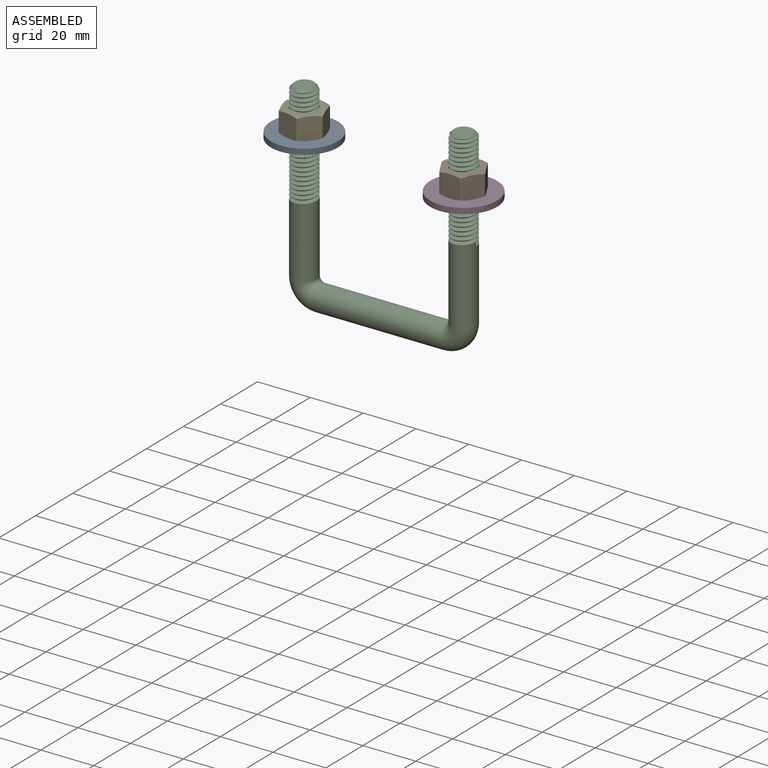
[diagram: assembled view]
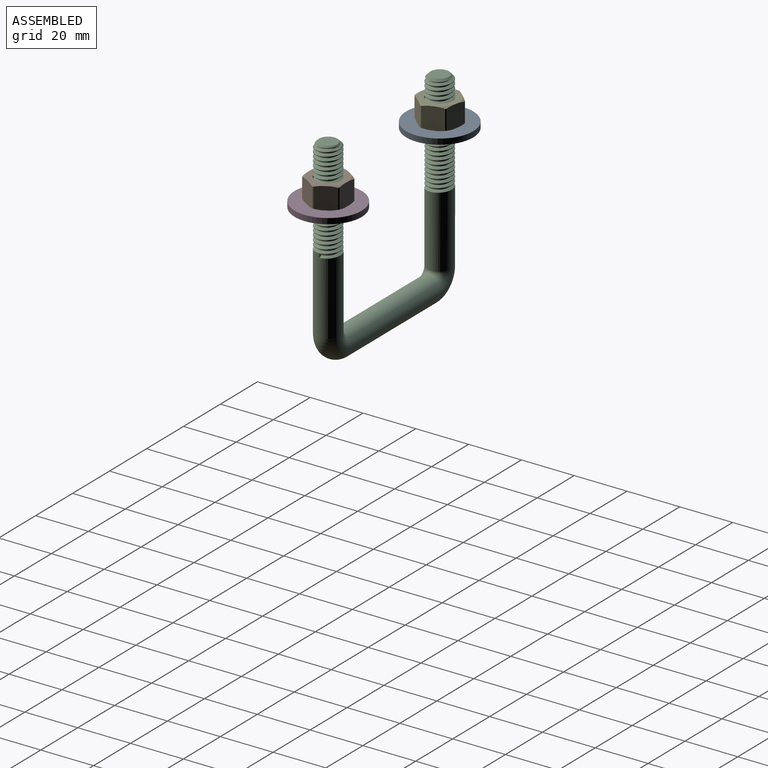
[diagram: assembled view, second angle]
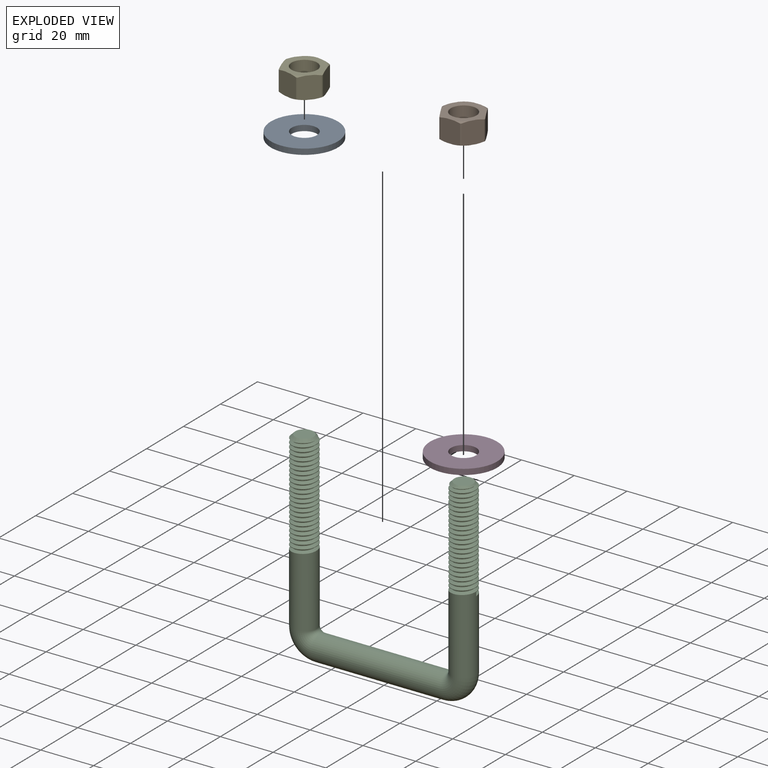
[diagram: exploded view]
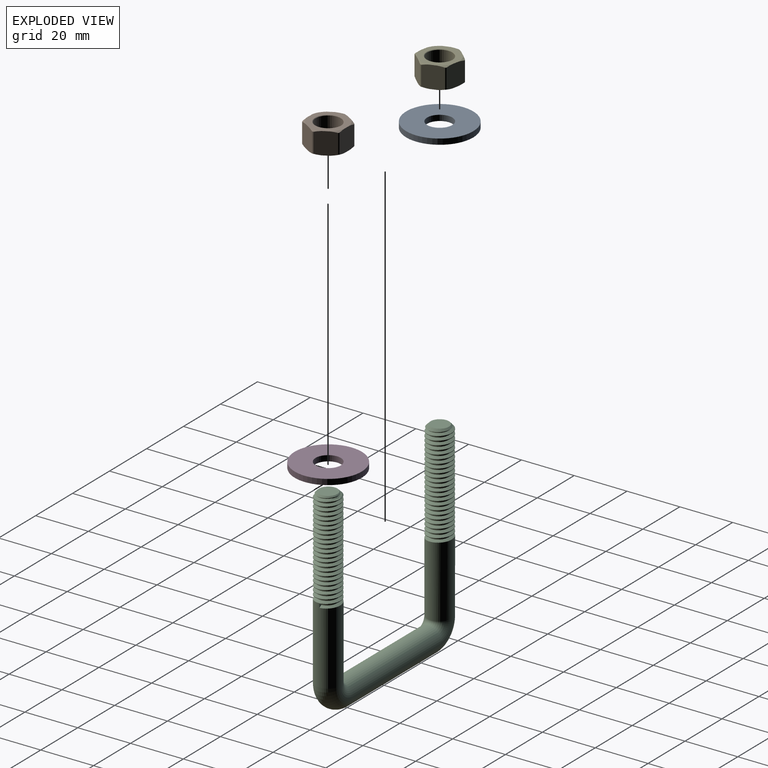
[diagram: exploded view, second angle]
ASSEMBLY  parts=5 mates=4
PART A: 4 faces, bbox 25.4x25.4x2.1 mm
  f0: plane 25.4x25.4mm, normal (0,0,1), area 434.7mm2, adj f2,f3
  f1: plane 25.4x25.4mm, normal (0,0,-1), area 434.7mm2, adj f2,f3
  f2: cylinder r=12.7mm len=25.4mm, axis (0,0,-1), area 170.3mm2, adj f0,f1
  f3: cylinder r=4.79mm len=9.58mm, axis (0,0,-1), area 64.2mm2, adj f0,f1
PART B: 29 faces, bbox 16.5x16.3x8.6 mm
  f0: plane 8.6x6.97mm, normal (0.87,0.5,0), area 62.7mm2, adj f6,f7,f12,f13,f14,f24,f25,f26
  f1: plane 8.6x8mm, normal (0,1,0), area 62.7mm2, adj f6,f7,f21,f22,f23,f24,f25,f26
  f2: plane 8.6x6.97mm, normal (-0.87,0.5,0), area 62.7mm2, adj f6,f7,f18,f19,f20,f21,f22,f23
  f3: plane 8.6x6.97mm, normal (-0.87,-0.5,0), area 62.7mm2, adj f6,f7,f15,f16,f17,f18,f19,f20
  f4: plane 8.6x8mm, normal (0,-1,0), area 62.7mm2, adj f6,f7,f9,f10,f11,f15,f16,f17
  f5: plane 8.6x6.97mm, normal (0.87,-0.5,0), area 62.7mm2, adj f6,f7,f9,f10,f11,f12,f13,f14
  f6: plane 14.53x14.3mm, normal (0,0,1), area 87.8mm2, adj f0,f1,f2,f3,f4,f5,f11,f14
  f7: plane 14.53x14.3mm, normal (0,0,-1), area 87.8mm2, adj f0,f1,f2,f3,f4,f5,f10,f13
  f8: cylinder r=4.79mm len=9.58mm, axis (0,0,-1), area 241.2mm2, adj f27,f28
  f9: cylinder r=8.13mm len=7.53mm, axis (0,0,-1), area 3.4mm2, adj f4,f5,f10,f11
  f10: cone r=8.13mm half-angle=64.9deg, axis (0,0,1), area 2.7mm2, adj f4,f5,f7,f9
  f11: cone r=7.27mm half-angle=65deg, axis (0,0,-1), area 2.7mm2, adj f4,f5,f6,f9
  f12: cylinder r=8.13mm len=7.53mm, axis (0,0,-1), area 3.4mm2, adj f0,f5,f13,f14
  f13: cone r=8.13mm half-angle=64.9deg, axis (0,0,1), area 2.7mm2, adj f0,f5,f7,f12
  f14: cone r=7.27mm half-angle=65deg, axis (0,0,-1), area 2.7mm2, adj f0,f5,f6,f12
  f15: cylinder r=8.13mm len=7.53mm, axis (0,0,-1), area 3.4mm2, adj f3,f4,f16,f17
  f16: cone r=8.13mm half-angle=64.9deg, axis (0,0,1), area 2.7mm2, adj f3,f4,f7,f15
  f17: cone r=7.27mm half-angle=65deg, axis (0,0,-1), area 2.7mm2, adj f3,f4,f6,f15
  f18: cylinder r=8.13mm len=7.53mm, axis (0,0,-1), area 3.4mm2, adj f2,f3,f19,f20
  f19: cone r=8.13mm half-angle=64.9deg, axis (0,0,1), area 2.7mm2, adj f2,f3,f7,f18
  f20: cone r=7.27mm half-angle=65deg, axis (0,0,-1), area 2.7mm2, adj f2,f3,f6,f18
  f21: cylinder r=8.13mm len=7.53mm, axis (0,0,-1), area 3.4mm2, adj f1,f2,f22,f23
  f22: cone r=8.13mm half-angle=64.9deg, axis (0,0,1), area 2.7mm2, adj f1,f2,f7,f21
  f23: cone r=7.27mm half-angle=65deg, axis (0,0,-1), area 2.7mm2, adj f1,f2,f6,f21
  f24: cylinder r=8.13mm len=7.53mm, axis (0,0,-1), area 3.4mm2, adj f0,f1,f25,f26
  f25: cone r=8.13mm half-angle=64.9deg, axis (0,0,1), area 2.7mm2, adj f0,f1,f7,f24
  f26: cone r=7.27mm half-angle=65deg, axis (0,0,-1), area 2.7mm2, adj f0,f1,f6,f24
  f27: cone r=4.95mm half-angle=45deg, axis (0,0,-1), area 6.9mm2, adj f7,f8
  f28: cone r=4.79mm half-angle=45deg, axis (0,0,1), area 6.9mm2, adj f6,f8
PART C: 64 faces, bbox 71.6x9.5x77.5 mm
  f0: cylinder r=4.76mm len=27.62mm, axis (0,0,1), area 802.8mm2, adj f24,f50,f60,f61
  f1: cylinder r=4.76mm len=3.37mm, axis (0,0,1), area 0.4mm2, adj f2,f54,f62
  f2: cylinder r=4.76mm len=9.53mm, axis (0,0,1), area 5.9mm2, adj f1,f3,f61,f62
  f3: cylinder r=4.76mm len=9.53mm, axis (0,0,1), area 5.9mm2, adj f2,f4,f61,f62
  f4: cylinder r=4.76mm len=9.53mm, axis (0,0,1), area 5.9mm2, adj f3,f5,f61,f62
  f5: cylinder r=4.76mm len=9.53mm, axis (0,0,1), area 5.9mm2, adj f4,f6,f61,f62
  f6: cylinder r=4.76mm len=9.53mm, axis (0,0,1), area 5.9mm2, adj f5,f7,f61,f62
  f7: cylinder r=4.76mm len=9.53mm, axis (0,0,1), area 5.9mm2, adj f6,f8,f61,f62
  f8: cylinder r=4.76mm len=9.53mm, axis (0,0,1), area 5.9mm2, adj f7,f9,f61,f62
  f9: cylinder r=4.76mm len=9.53mm, axis (0,0,1), area 5.9mm2, adj f8,f10,f61,f62
  f10: cylinder r=4.76mm len=9.53mm, axis (0,0,1), area 5.9mm2, adj f9,f11,f61,f62
  f11: cylinder r=4.76mm len=9.53mm, axis (0,0,1), area 5.9mm2, adj f10,f12,f61,f62
  f12: cylinder r=4.76mm len=9.53mm, axis (0,0,1), area 5.9mm2, adj f11,f13,f61,f62
  f13: cylinder r=4.76mm len=9.53mm, axis (0,0,1), area 5.9mm2, adj f12,f14,f61,f62
  f14: cylinder r=4.76mm len=9.53mm, axis (0,0,1), area 5.9mm2, adj f13,f15,f61,f62
  f15: cylinder r=4.76mm len=9.53mm, axis (0,0,1), area 5.9mm2, adj f14,f16,f61,f62
  f16: cylinder r=4.76mm len=9.53mm, axis (0,0,1), area 5.9mm2, adj f15,f17,f61,f62
  f17: cylinder r=4.76mm len=9.53mm, axis (0,0,1), area 5.9mm2, adj f16,f18,f61,f62
  f18: cylinder r=4.76mm len=9.53mm, axis (0,0,1), area 5.9mm2, adj f17,f19,f61,f62
  f19: cylinder r=4.76mm len=9.53mm, axis (0,0,1), area 5.9mm2, adj f18,f20,f61,f62
  f20: cylinder r=4.76mm len=9.53mm, axis (0,0,1), area 5.9mm2, adj f19,f21,f61,f62
  f21: cylinder r=4.76mm len=9.53mm, axis (0,0,1), area 5.9mm2, adj f20,f22,f61,f62
  f22: cylinder r=4.76mm len=9.53mm, axis (0,0,1), area 5.9mm2, adj f21,f23,f61,f62
  f23: cylinder r=4.76mm len=9.53mm, axis (0,0,1), area 5.9mm2, adj f22,f24,f61,f62
  f24: cylinder r=4.76mm len=9.53mm, axis (0,0,1), area 5.9mm2, adj f0,f23,f61,f62
  f25: cylinder r=4.76mm len=29.41mm, axis (0,0,1), area 842.8mm2, adj f26,f48,f55,f56,f58
  f26: cylinder r=4.76mm len=9.53mm, axis (0,0,1), area 5.9mm2, adj f25,f27,f56,f58
  f27: cylinder r=4.76mm len=9.53mm, axis (0,0,1), area 5.9mm2, adj f26,f28,f56,f58
  f28: cylinder r=4.76mm len=9.53mm, axis (0,0,1), area 5.9mm2, adj f27,f29,f56,f58
  f29: cylinder r=4.76mm len=9.53mm, axis (0,0,1), area 5.9mm2, adj f28,f30,f56,f58
  f30: cylinder r=4.76mm len=9.53mm, axis (0,0,1), area 5.9mm2, adj f29,f31,f56,f58
  f31: cylinder r=4.76mm len=9.53mm, axis (0,0,1), area 5.9mm2, adj f30,f32,f56,f58
  f32: cylinder r=4.76mm len=9.53mm, axis (0,0,1), area 5.9mm2, adj f31,f33,f56,f58
  f33: cylinder r=4.76mm len=9.53mm, axis (0,0,1), area 5.9mm2, adj f32,f34,f56,f58
  f34: cylinder r=4.76mm len=9.53mm, axis (0,0,1), area 5.9mm2, adj f33,f35,f56,f58
  f35: cylinder r=4.76mm len=9.53mm, axis (0,0,1), area 5.9mm2, adj f34,f36,f56,f58
  f36: cylinder r=4.76mm len=9.53mm, axis (0,0,1), area 5.9mm2, adj f35,f37,f56,f58
  f37: cylinder r=4.76mm len=9.53mm, axis (0,0,1), area 5.9mm2, adj f36,f38,f56,f58
  f38: cylinder r=4.76mm len=9.53mm, axis (0,0,1), area 5.9mm2, adj f37,f39,f56,f58
  f39: cylinder r=4.76mm len=9.53mm, axis (0,0,1), area 5.9mm2, adj f38,f40,f56,f58
  f40: cylinder r=4.76mm len=9.53mm, axis (0,0,1), area 5.9mm2, adj f39,f41,f56,f58
  f41: cylinder r=4.76mm len=9.53mm, axis (0,0,1), area 5.9mm2, adj f40,f42,f56,f58
  f42: cylinder r=4.76mm len=9.53mm, axis (0,0,1), area 5.9mm2, adj f41,f43,f56,f58
  f43: cylinder r=4.76mm len=9.53mm, axis (0,0,1), area 5.9mm2, adj f42,f44,f56,f58
  f44: cylinder r=4.76mm len=9.53mm, axis (0,0,1), area 5.9mm2, adj f43,f45,f56,f58
  f45: cylinder r=4.76mm len=9.53mm, axis (0,0,1), area 5.9mm2, adj f44,f46,f56,f58
  f46: cylinder r=4.76mm len=9.53mm, axis (0,0,1), area 5.9mm2, adj f45,f47,f56,f58
  f47: cylinder r=4.76mm len=9.53mm, axis (0,0,1), area 5.6mm2, adj f46,f53,f56,f58
  f48: torus R=6.03mm, axis (0,-1,0), area 283.6mm2, adj f25,f49
  f49: cylinder r=4.76mm len=48.26mm, axis (1,0,0), area 1444.1mm2, adj f48,f50
  f50: torus R=6.03mm, axis (0,-1,0), area 283.6mm2, adj f0,f49
  f51: plane 6.99x6.99mm, normal (0,0,1), area 38.3mm2, adj f53
  f52: plane 6.99x6.99mm, normal (0,0,1), area 38.3mm2, adj f54
  f53: cone r=4.76mm half-angle=45deg, axis (0,0,-1), area 26.5mm2, adj f47,f51,f56,f57,f58
  f54: cone r=3.49mm half-angle=45deg, axis (0,0,-1), area 31.3mm2, adj f1,f52,f59,f62
  f55: plane 1.39x1.03mm, normal (0,1,0), area 0.8mm2, adj f25,f56,f57,f58
  f56: bspline ~37.9x9.53mm, area 742mm2, adj f25,f26,f27,f28,f29,f30,f31,f32
  f57: cylinder r=3.73mm len=37.27mm, axis (0,0,-1), area 121.7mm2, adj f53,f55,f56,f58
  f58: bspline ~37.7x9.53mm, area 725.9mm2, adj f25,f26,f27,f28,f29,f30,f31,f32
  f59: plane 1.03x0.88mm, normal (0,1,0), area 0.2mm2, adj f54,f61,f62,f63
  f60: plane 1.39x1.03mm, normal (0,-1,0), area 0.8mm2, adj f0,f61,f62,f63
  f61: bspline ~38.7x9.53mm, area 762.3mm2, adj f0,f2,f3,f4,f5,f6,f7,f8
  f62: bspline ~38.7x9.53mm, area 750.8mm2, adj f1,f2,f3,f4,f5,f6,f7,f8
  f63: cylinder r=3.73mm len=38.3mm, axis (0,0,-1), area 111.7mm2, adj f59,f60,f61,f62
PART D: 4 faces, bbox 25.4x25.4x2.1 mm
  f0: plane 25.4x25.4mm, normal (0,0,1), area 434.7mm2, adj f2,f3
  f1: plane 25.4x25.4mm, normal (0,0,-1), area 434.7mm2, adj f2,f3
  f2: cylinder r=12.7mm len=25.4mm, axis (0,0,-1), area 170.3mm2, adj f0,f1
  f3: cylinder r=4.79mm len=9.58mm, axis (0,0,-1), area 64.2mm2, adj f0,f1
PART E: 29 faces, bbox 16.5x16.3x8.6 mm
  f0: plane 8.6x6.97mm, normal (0.87,0.5,0), area 62.7mm2, adj f6,f7,f12,f13,f14,f24,f25,f26
  f1: plane 8.6x8mm, normal (0,1,0), area 62.7mm2, adj f6,f7,f21,f22,f23,f24,f25,f26
  f2: plane 8.6x6.97mm, normal (-0.87,0.5,0), area 62.7mm2, adj f6,f7,f18,f19,f20,f21,f22,f23
  f3: plane 8.6x6.97mm, normal (-0.87,-0.5,0), area 62.7mm2, adj f6,f7,f15,f16,f17,f18,f19,f20
  f4: plane 8.6x8mm, normal (0,-1,0), area 62.7mm2, adj f6,f7,f9,f10,f11,f15,f16,f17
  f5: plane 8.6x6.97mm, normal (0.87,-0.5,0), area 62.7mm2, adj f6,f7,f9,f10,f11,f12,f13,f14
  f6: plane 14.53x14.3mm, normal (0,0,1), area 87.8mm2, adj f0,f1,f2,f3,f4,f5,f11,f14
  f7: plane 14.53x14.3mm, normal (0,0,-1), area 87.8mm2, adj f0,f1,f2,f3,f4,f5,f10,f13
  f8: cylinder r=4.79mm len=9.58mm, axis (0,0,-1), area 241.2mm2, adj f27,f28
  f9: cylinder r=8.13mm len=7.53mm, axis (0,0,-1), area 3.4mm2, adj f4,f5,f10,f11
  f10: cone r=8.13mm half-angle=64.9deg, axis (0,0,1), area 2.7mm2, adj f4,f5,f7,f9
  f11: cone r=7.27mm half-angle=65deg, axis (0,0,-1), area 2.7mm2, adj f4,f5,f6,f9
  f12: cylinder r=8.13mm len=7.53mm, axis (0,0,-1), area 3.4mm2, adj f0,f5,f13,f14
  f13: cone r=8.13mm half-angle=64.9deg, axis (0,0,1), area 2.7mm2, adj f0,f5,f7,f12
  f14: cone r=7.27mm half-angle=65deg, axis (0,0,-1), area 2.7mm2, adj f0,f5,f6,f12
  f15: cylinder r=8.13mm len=7.53mm, axis (0,0,-1), area 3.4mm2, adj f3,f4,f16,f17
  f16: cone r=8.13mm half-angle=64.9deg, axis (0,0,1), area 2.7mm2, adj f3,f4,f7,f15
  f17: cone r=7.27mm half-angle=65deg, axis (0,0,-1), area 2.7mm2, adj f3,f4,f6,f15
  f18: cylinder r=8.13mm len=7.53mm, axis (0,0,-1), area 3.4mm2, adj f2,f3,f19,f20
  f19: cone r=8.13mm half-angle=64.9deg, axis (0,0,1), area 2.7mm2, adj f2,f3,f7,f18
  f20: cone r=7.27mm half-angle=65deg, axis (0,0,-1), area 2.7mm2, adj f2,f3,f6,f18
  f21: cylinder r=8.13mm len=7.53mm, axis (0,0,-1), area 3.4mm2, adj f1,f2,f22,f23
  f22: cone r=8.13mm half-angle=64.9deg, axis (0,0,1), area 2.7mm2, adj f1,f2,f7,f21
  f23: cone r=7.27mm half-angle=65deg, axis (0,0,-1), area 2.7mm2, adj f1,f2,f6,f21
  f24: cylinder r=8.13mm len=7.53mm, axis (0,0,-1), area 3.4mm2, adj f0,f1,f25,f26
  f25: cone r=8.13mm half-angle=64.9deg, axis (0,0,1), area 2.7mm2, adj f0,f1,f7,f24
  f26: cone r=7.27mm half-angle=65deg, axis (0,0,-1), area 2.7mm2, adj f0,f1,f6,f24
  f27: cone r=4.95mm half-angle=45deg, axis (0,0,-1), area 6.9mm2, adj f7,f8
  f28: cone r=4.79mm half-angle=45deg, axis (0,0,1), area 6.9mm2, adj f6,f8
PLACE A rot(axis=(0,0,1),48.3deg) t=(-10.11,22.53,-5.62)mm
PLACE B rot(axis=(0,0,-1),1.2deg) t=(0.01,0.64,-7.66)mm
PLACE C at identity fixed
PLACE D rot(axis=(0,0,-1),1.2deg) t=(0.01,0.64,-9.79)mm
PLACE E rot(axis=(0,0,1),48.3deg) t=(-10.11,22.53,-3.49)mm
MATE fastened B.f8 <-> D.f2  axis (0,0,-1) through (30.16,0,-20.36)mm
MATE cylindrical D.f2 <-> C.f25  axis (0,0,-1) through (30.16,0,-22.49)mm
MATE fastened E.f8 <-> A.f2  axis (0,0,-1) through (-30.16,0,-16.19)mm
MATE cylindrical A.f2 <-> C.f0  axis (0,0,-1) through (-30.16,0,-18.32)mm
